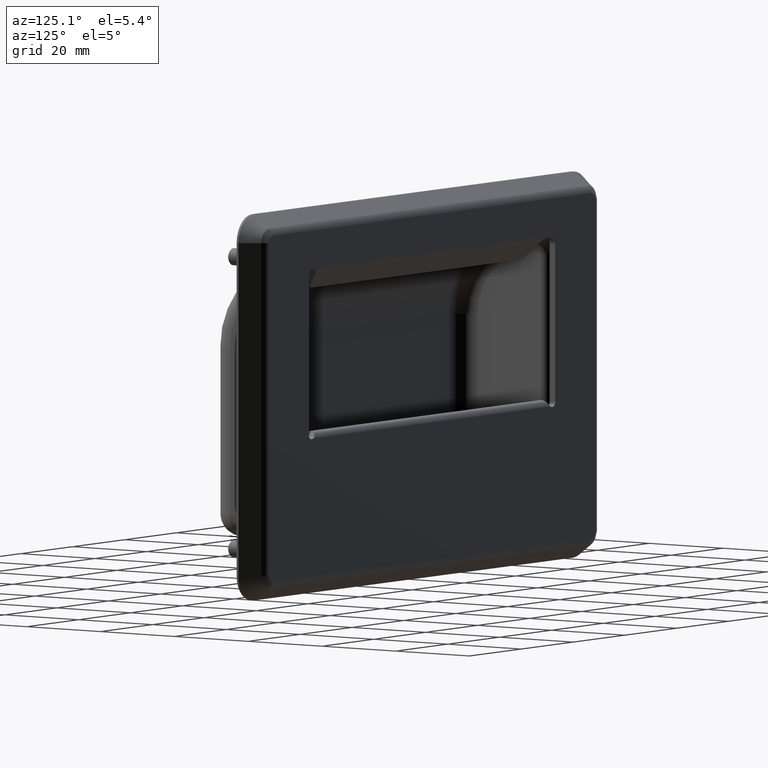
[diagram: clean part render]
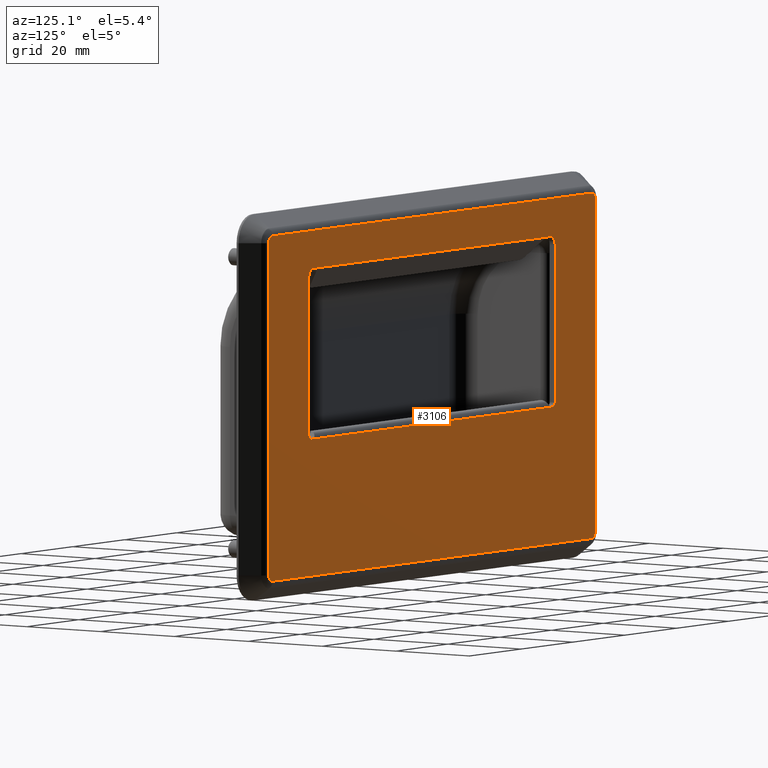
[diagram: same view with one face highlighted and labeled with its STEP entity id]
A machine part, auxiliary view. The second image highlights one B-rep face of the part: STEP entity #3106.
In plain terms, the highlighted planar face has unit normal (0, 1, 0).
Its self-contained STEP definition (entity closure, byte-faithful):
#166=FACE_BOUND('',#487,.T.);
#220=PLANE('',#3326);
#291=FACE_OUTER_BOUND('',#486,.T.);
#486=EDGE_LOOP('',(#2177,#2178,#2179,#2180,#2181,#2182,#2183,#2184));
#487=EDGE_LOOP('',(#2185,#2186,#2187,#2188,#2189,#2190,#2191,#2192,#2193,
#2194,#2195,#2196));
#697=LINE('',#4452,#941);
#702=LINE('',#4467,#946);
#710=LINE('',#4491,#954);
#712=LINE('',#4514,#956);
#714=LINE('',#4534,#958);
#716=LINE('',#4554,#960);
#718=LINE('',#4571,#962);
#726=LINE('',#4591,#970);
#727=LINE('',#4593,#971);
#728=LINE('',#4594,#972);
#729=LINE('',#4596,#973);
#730=LINE('',#4597,#974);
#941=VECTOR('',#3600,35.);
#946=VECTOR('',#3613,0.249999999997401);
#954=VECTOR('',#3635,0.249999999999995);
#956=VECTOR('',#3649,74.);
#958=VECTOR('',#3661,123.);
#960=VECTOR('',#3673,74.);
#962=VECTOR('',#3683,123.);
#970=VECTOR('',#3705,35.);
#971=VECTOR('',#3706,90.5);
#972=VECTOR('',#3707,0.249999999999995);
#973=VECTOR('',#3708,0.249999999997401);
#974=VECTOR('',#3709,92.5000000000052);
#1183=CIRCLE('',#3286,1.);
#1185=CIRCLE('',#3290,1.);
#1188=CIRCLE('',#3295,2.);
#1190=CIRCLE('',#3298,2.);
#1192=CIRCLE('',#3301,1.45868887685325);
#1198=CIRCLE('',#3308,1.45868887685328);
#1202=CIRCLE('',#3313,1.45868887685326);
#1206=CIRCLE('',#3318,1.45868887685326);
#1337=VERTEX_POINT('',#4442);
#1338=VERTEX_POINT('',#4443);
#1341=VERTEX_POINT('',#4451);
#1343=VERTEX_POINT('',#4457);
#1344=VERTEX_POINT('',#4458);
#1347=VERTEX_POINT('',#4466);
#1350=VERTEX_POINT('',#4474);
#1353=VERTEX_POINT('',#4481);
#1354=VERTEX_POINT('',#4483);
#1356=VERTEX_POINT('',#4489);
#1358=VERTEX_POINT('',#4502);
#1359=VERTEX_POINT('',#4504);
#1361=VERTEX_POINT('',#4510);
#1363=VERTEX_POINT('',#4524);
#1365=VERTEX_POINT('',#4530);
#1367=VERTEX_POINT('',#4544);
#1369=VERTEX_POINT('',#4550);
#1371=VERTEX_POINT('',#4564);
#1378=VERTEX_POINT('',#4592);
#1379=VERTEX_POINT('',#4595);
#1635=EDGE_CURVE('',#1337,#1338,#1183,.T.);
#1639=EDGE_CURVE('',#1341,#1338,#697,.T.);
#1642=EDGE_CURVE('',#1343,#1344,#1185,.T.);
#1646=EDGE_CURVE('',#1347,#1344,#702,.T.);
#1650=EDGE_CURVE('',#1341,#1350,#1188,.T.);
#1654=EDGE_CURVE('',#1353,#1354,#1190,.T.);
#1658=EDGE_CURVE('',#1353,#1356,#710,.T.);
#1660=EDGE_CURVE('',#1358,#1359,#1192,.T.);
#1665=EDGE_CURVE('',#1359,#1361,#712,.T.);
#1668=EDGE_CURVE('',#1361,#1363,#1198,.T.);
#1671=EDGE_CURVE('',#1363,#1365,#714,.T.);
#1674=EDGE_CURVE('',#1365,#1367,#1202,.T.);
#1677=EDGE_CURVE('',#1367,#1369,#716,.T.);
#1680=EDGE_CURVE('',#1369,#1371,#1206,.T.);
#1682=EDGE_CURVE('',#1371,#1358,#718,.T.);
#1692=EDGE_CURVE('',#1343,#1354,#726,.T.);
#1693=EDGE_CURVE('',#1356,#1378,#727,.T.);
#1694=EDGE_CURVE('',#1378,#1350,#728,.T.);
#1695=EDGE_CURVE('',#1337,#1379,#729,.T.);
#1696=EDGE_CURVE('',#1379,#1347,#730,.T.);
#2177=ORIENTED_EDGE('',*,*,#1660,.F.);
#2178=ORIENTED_EDGE('',*,*,#1682,.F.);
#2179=ORIENTED_EDGE('',*,*,#1680,.F.);
#2180=ORIENTED_EDGE('',*,*,#1677,.F.);
#2181=ORIENTED_EDGE('',*,*,#1674,.F.);
#2182=ORIENTED_EDGE('',*,*,#1671,.F.);
#2183=ORIENTED_EDGE('',*,*,#1668,.F.);
#2184=ORIENTED_EDGE('',*,*,#1665,.F.);
#2185=ORIENTED_EDGE('',*,*,#1692,.T.);
#2186=ORIENTED_EDGE('',*,*,#1654,.F.);
#2187=ORIENTED_EDGE('',*,*,#1658,.T.);
#2188=ORIENTED_EDGE('',*,*,#1693,.T.);
#2189=ORIENTED_EDGE('',*,*,#1694,.T.);
#2190=ORIENTED_EDGE('',*,*,#1650,.F.);
#2191=ORIENTED_EDGE('',*,*,#1639,.T.);
#2192=ORIENTED_EDGE('',*,*,#1635,.F.);
#2193=ORIENTED_EDGE('',*,*,#1695,.T.);
#2194=ORIENTED_EDGE('',*,*,#1696,.T.);
#2195=ORIENTED_EDGE('',*,*,#1646,.T.);
#2196=ORIENTED_EDGE('',*,*,#1642,.F.);
#3106=ADVANCED_FACE('',(#291,#166),#220,.T.);
#3286=AXIS2_PLACEMENT_3D('',#4444,#3592,#3593);
#3290=AXIS2_PLACEMENT_3D('',#4459,#3605,#3606);
#3295=AXIS2_PLACEMENT_3D('',#4475,#3620,#3621);
#3298=AXIS2_PLACEMENT_3D('',#4484,#3628,#3629);
#3301=AXIS2_PLACEMENT_3D('',#4505,#3638,#3639);
#3308=AXIS2_PLACEMENT_3D('',#4528,#3654,#3655);
#3313=AXIS2_PLACEMENT_3D('',#4548,#3666,#3667);
#3318=AXIS2_PLACEMENT_3D('',#4568,#3678,#3679);
#3326=AXIS2_PLACEMENT_3D('',#4590,#3703,#3704);
#3592=DIRECTION('center_axis',(0.,1.,0.));
#3593=DIRECTION('ref_axis',(-0.707106781186547,0.,-0.707106781186548));
#3600=DIRECTION('',(0.,0.,-1.));
#3605=DIRECTION('center_axis',(0.,1.,0.));
#3606=DIRECTION('ref_axis',(0.707106781186547,0.,-0.707106781186548));
#3613=DIRECTION('',(1.,0.,0.));
#3620=DIRECTION('center_axis',(0.,1.,0.));
#3621=DIRECTION('ref_axis',(-0.707106781186549,0.,0.707106781186546));
#3628=DIRECTION('center_axis',(0.,1.,0.));
#3629=DIRECTION('ref_axis',(0.707106781186549,0.,0.707106781186546));
#3635=DIRECTION('',(-1.,0.,0.));
#3638=DIRECTION('center_axis',(0.,-1.,0.));
#3639=DIRECTION('ref_axis',(0.707106781186547,0.,-0.707106781186547));
#3649=DIRECTION('',(0.,0.,1.));
#3654=DIRECTION('center_axis',(0.,-1.,0.));
#3655=DIRECTION('ref_axis',(0.707106781186547,0.,0.707106781186547));
#3661=DIRECTION('',(-1.,0.,0.));
#3666=DIRECTION('center_axis',(0.,-1.,0.));
#3667=DIRECTION('ref_axis',(-0.707106781186546,0.,0.707106781186549));
#3673=DIRECTION('',(0.,0.,-1.));
#3678=DIRECTION('center_axis',(0.,-1.,0.));
#3679=DIRECTION('ref_axis',(-0.707106781186546,0.,-0.707106781186549));
#3683=DIRECTION('',(1.,0.,0.));
#3703=DIRECTION('center_axis',(0.,1.,0.));
#3704=DIRECTION('ref_axis',(0.,0.,1.));
#3705=DIRECTION('',(0.,0.,1.));
#3706=DIRECTION('',(-1.,0.,0.));
#3707=DIRECTION('',(-1.,0.,0.));
#3708=DIRECTION('',(1.,0.,0.));
#3709=DIRECTION('',(1.,0.,0.));
#4442=CARTESIAN_POINT('',(-46.5,5.5,-7.99999999999999));
#4443=CARTESIAN_POINT('',(-47.5,5.5,-6.99999999999999));
#4444=CARTESIAN_POINT('Origin',(-46.5,5.5,-6.99999999999999));
#4451=CARTESIAN_POINT('',(-47.5,5.5,28.));
#4452=CARTESIAN_POINT('',(-47.5,5.5,15.));
#4457=CARTESIAN_POINT('',(47.5,5.5,-6.99999999999999));
#4458=CARTESIAN_POINT('',(46.5,5.5,-7.99999999999999));
#4459=CARTESIAN_POINT('Origin',(46.5,5.5,-6.99999999999999));
#4466=CARTESIAN_POINT('',(46.2500000000026,5.5,-7.99999999999999));
#4467=CARTESIAN_POINT('',(-23.75,5.5,-7.99999999999999));
#4474=CARTESIAN_POINT('',(-45.5,5.5,30.));
#4475=CARTESIAN_POINT('Origin',(-45.5,5.5,28.));
#4481=CARTESIAN_POINT('',(45.5,5.5,30.));
#4483=CARTESIAN_POINT('',(47.5,5.5,28.));
#4484=CARTESIAN_POINT('Origin',(45.5,5.5,28.));
#4489=CARTESIAN_POINT('',(45.25,5.5,30.));
#4491=CARTESIAN_POINT('',(23.75,5.5,30.));
#4502=CARTESIAN_POINT('',(61.5,5.5,-38.4586888768532));
#4504=CARTESIAN_POINT('',(62.9586888768533,5.5,-37.));
#4505=CARTESIAN_POINT('Origin',(61.5,5.5,-37.));
#4510=CARTESIAN_POINT('',(62.9586888768533,5.5,37.));
#4514=CARTESIAN_POINT('',(62.9586888768533,5.5,9.24999999999999));
#4524=CARTESIAN_POINT('',(61.5,5.5,38.4586888768533));
#4528=CARTESIAN_POINT('Origin',(61.5,5.5,37.));
#4530=CARTESIAN_POINT('',(-61.5,5.5,38.4586888768533));
#4534=CARTESIAN_POINT('',(-15.375,5.5,38.4586888768533));
#4544=CARTESIAN_POINT('',(-62.9586888768533,5.5,37.));
#4548=CARTESIAN_POINT('Origin',(-61.5,5.5,37.));
#4550=CARTESIAN_POINT('',(-62.9586888768533,5.5,-37.));
#4554=CARTESIAN_POINT('',(-62.9586888768533,5.5,-9.24999999999999));
#4564=CARTESIAN_POINT('',(-61.5,5.5,-38.4586888768532));
#4568=CARTESIAN_POINT('Origin',(-61.5,5.5,-37.));
#4571=CARTESIAN_POINT('',(15.375,5.5,-38.4586888768533));
#4590=CARTESIAN_POINT('Origin',(8.88178419700125E-15,5.5,0.));
#4591=CARTESIAN_POINT('',(47.5,5.5,-3.99999999999999));
#4592=CARTESIAN_POINT('',(-45.25,5.5,30.));
#4593=CARTESIAN_POINT('',(23.75,5.5,30.));
#4594=CARTESIAN_POINT('',(23.75,5.5,30.));
#4595=CARTESIAN_POINT('',(-46.2500000000026,5.5,-7.99999999999999));
#4596=CARTESIAN_POINT('',(-23.75,5.5,-7.99999999999999));
#4597=CARTESIAN_POINT('',(-23.75,5.5,-7.99999999999999));